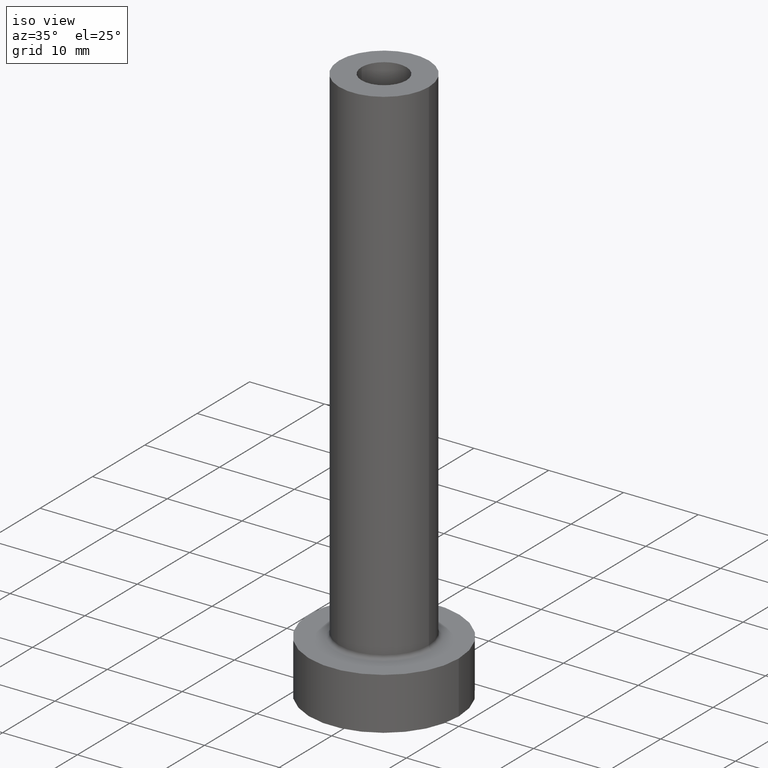
[diagram: clean part render]
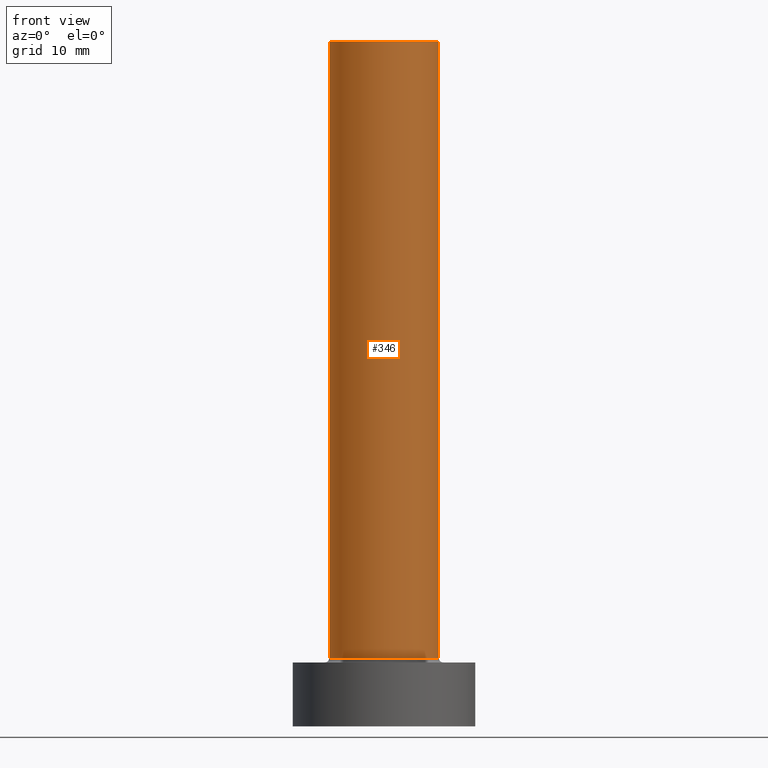
[diagram: tour spotlight — one face highlighted and labeled with its STEP entity id]
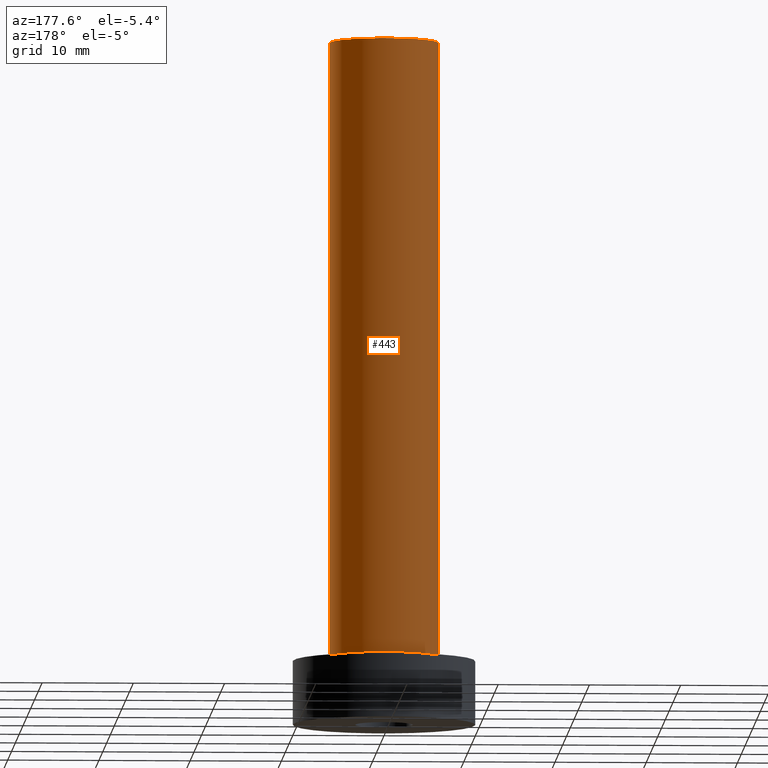
[diagram: tour spotlight — one face highlighted and labeled with its STEP entity id]
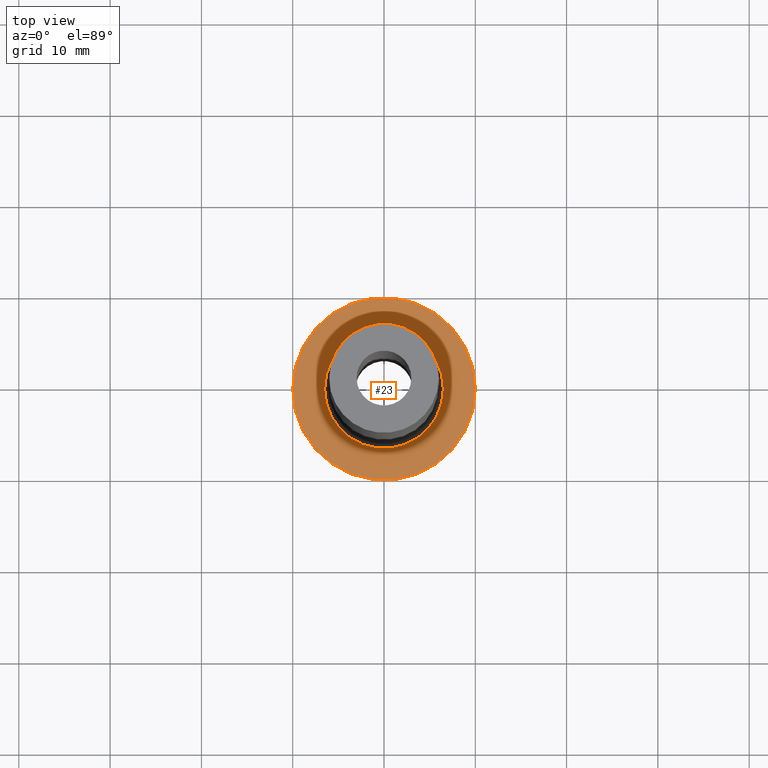
[diagram: tour spotlight — one face highlighted and labeled with its STEP entity id]
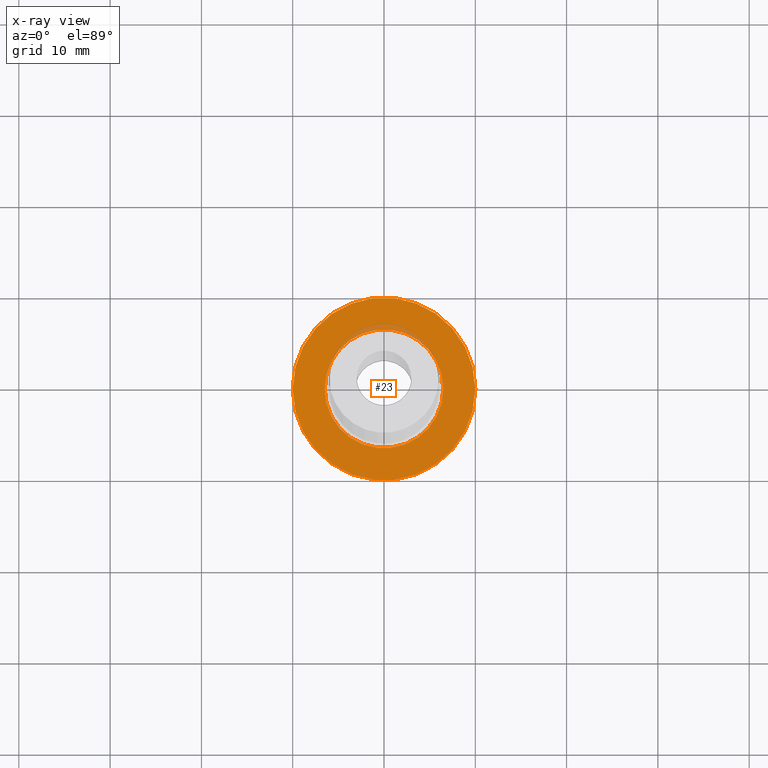
[diagram: x-ray of the same camera — body ghosted, this tour face saturated]
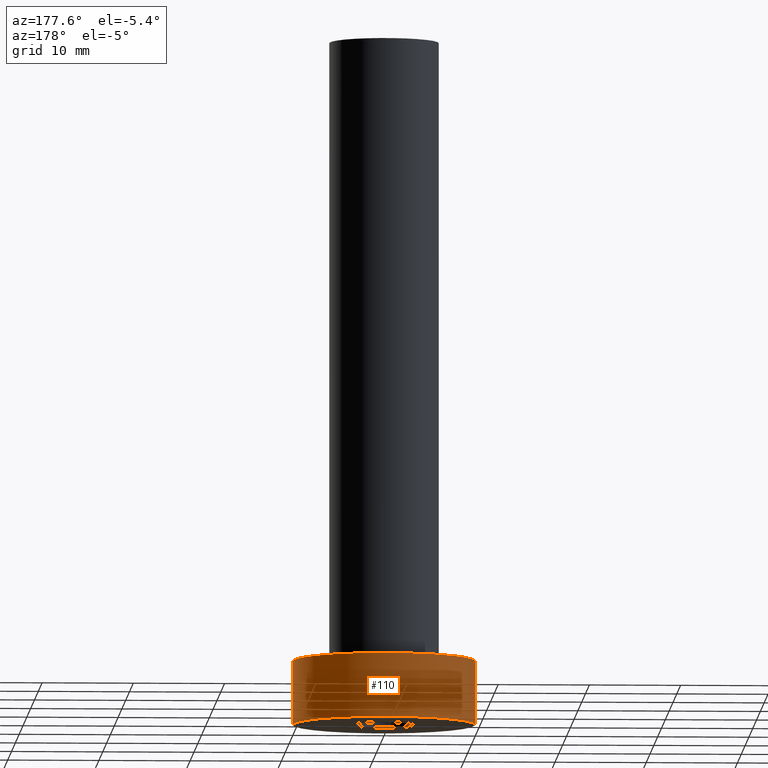
[diagram: tour spotlight — one face highlighted and labeled with its STEP entity id]
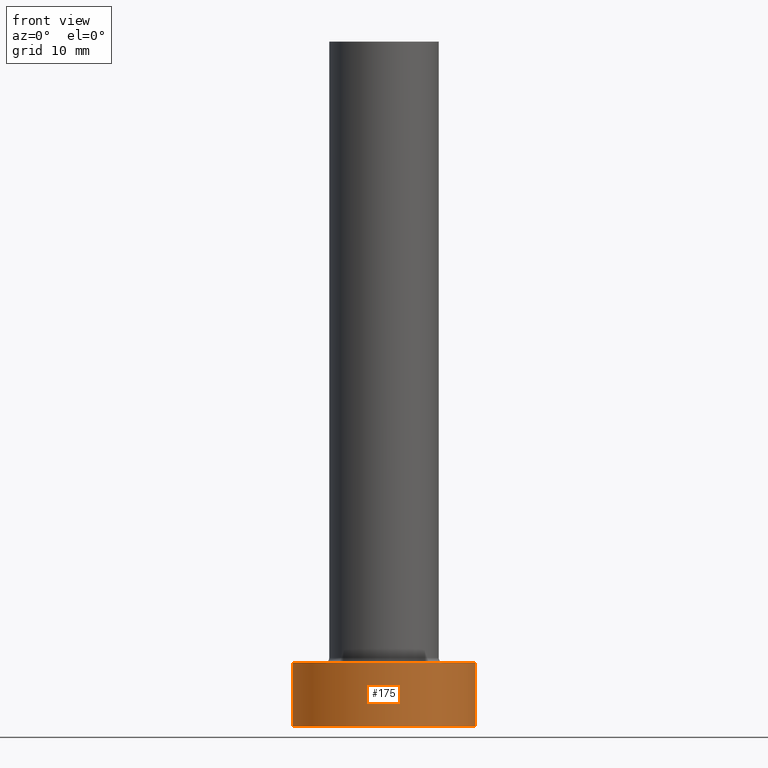
[diagram: tour spotlight — one face highlighted and labeled with its STEP entity id]
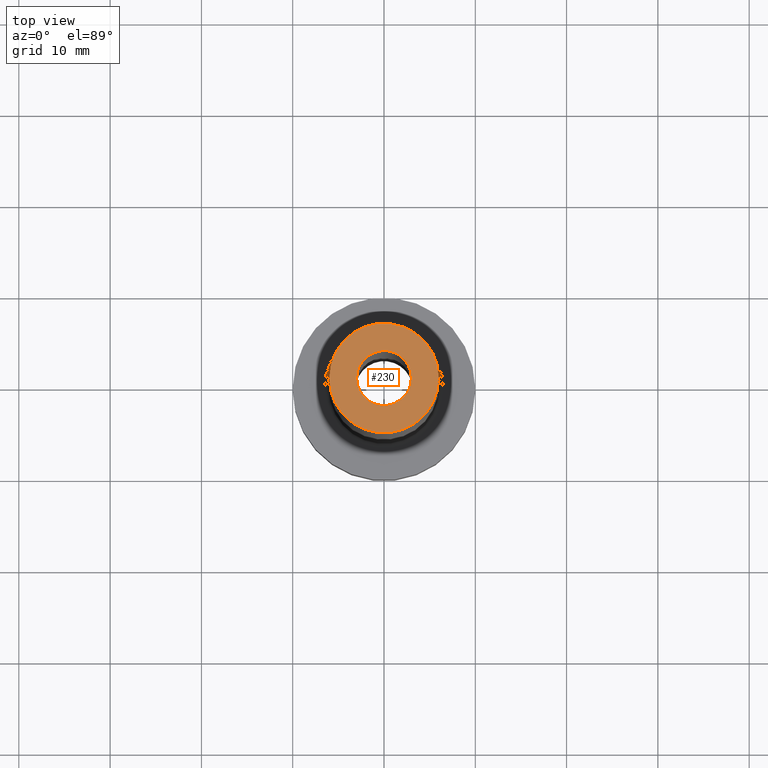
[diagram: tour spotlight — one face highlighted and labeled with its STEP entity id]
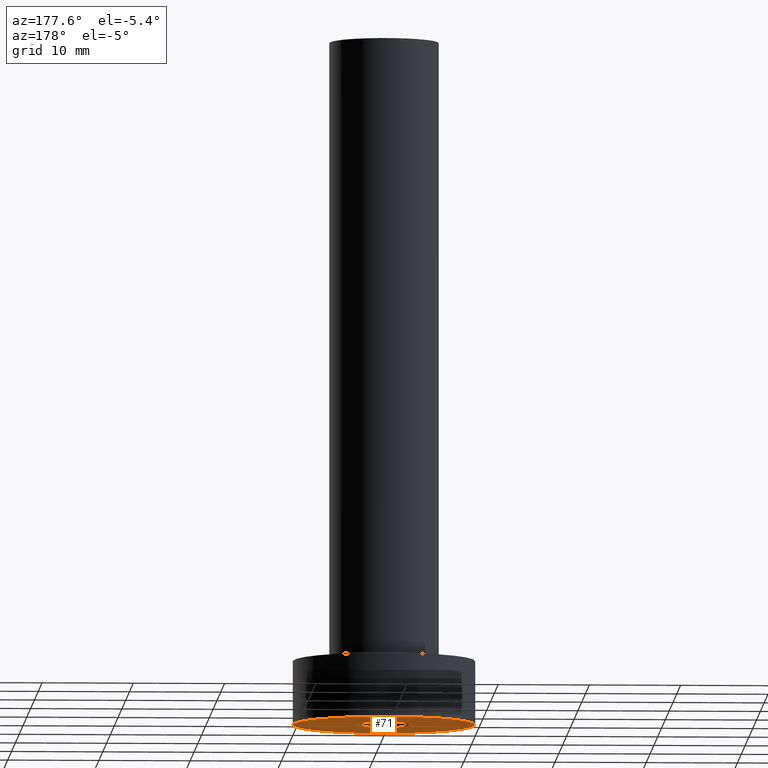
[diagram: tour spotlight — one face highlighted and labeled with its STEP entity id]
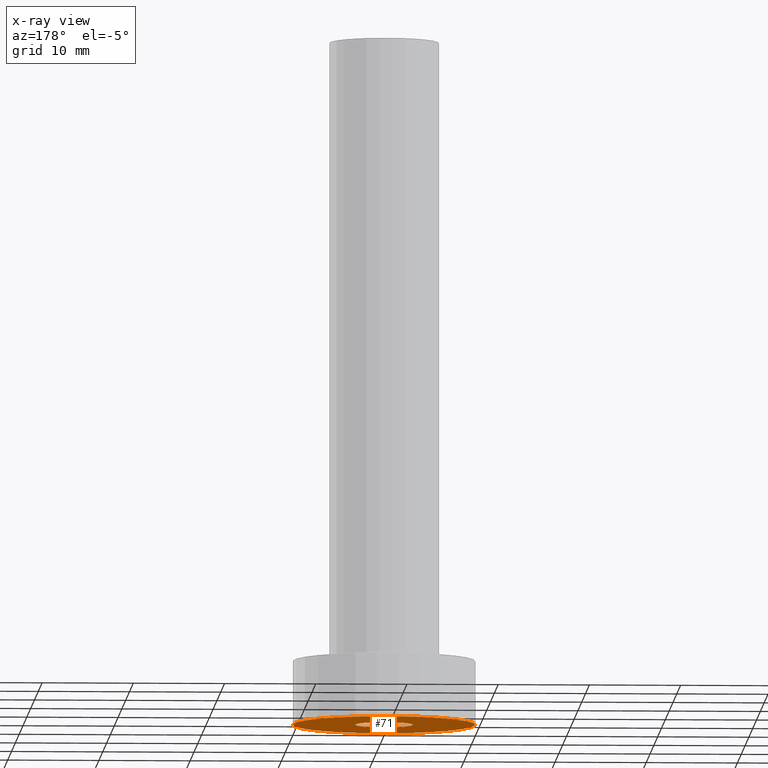
[diagram: x-ray of the same camera — body ghosted, this tour face saturated]
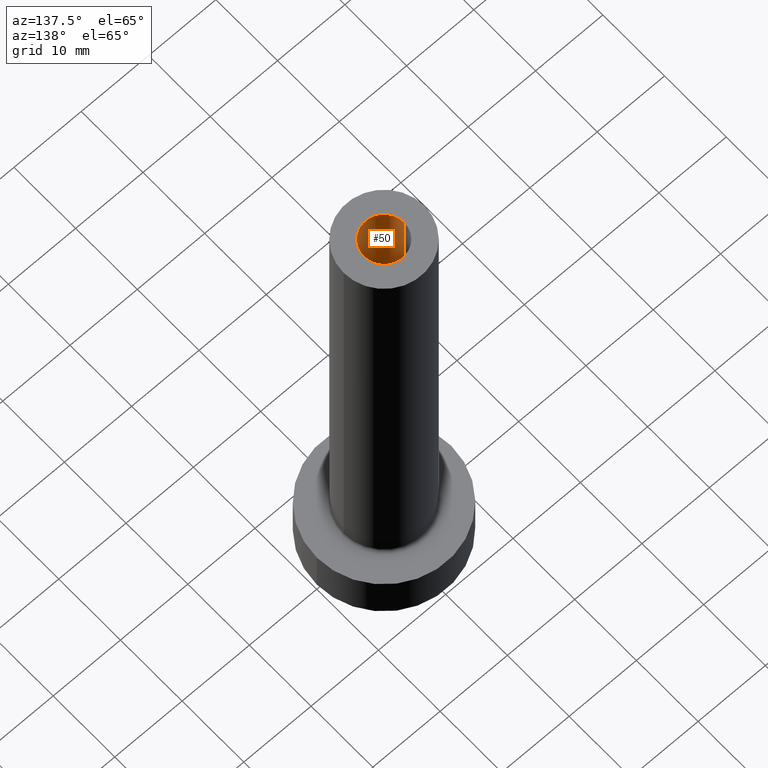
[diagram: tour spotlight — one face highlighted and labeled with its STEP entity id]
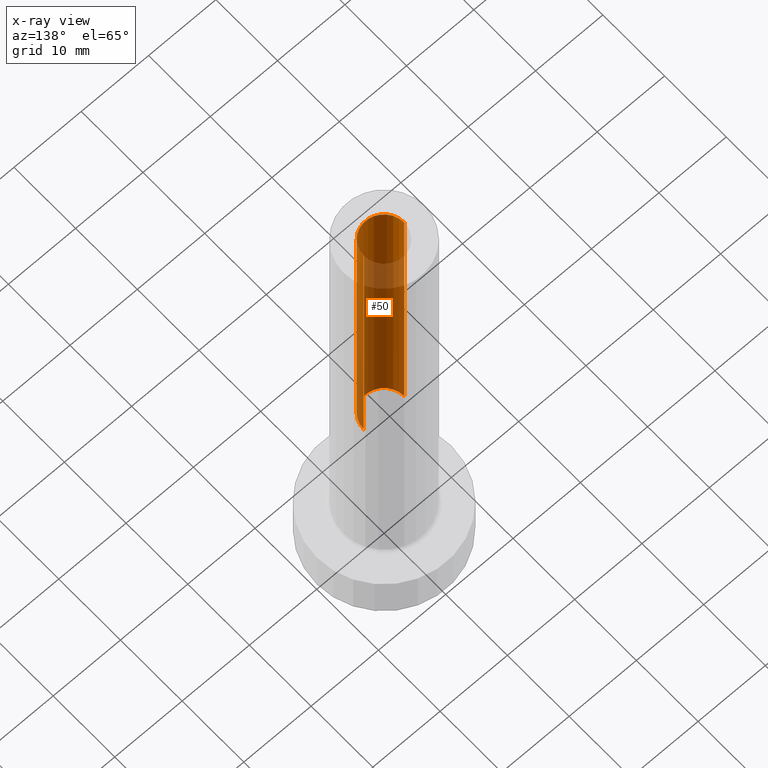
[diagram: x-ray of the same camera — body ghosted, this tour face saturated]
A machine part: a face-by-face anatomy tour. The part has 14 B-rep faces; the first image is the clean iso view, then the 8 largest visible faces are spotlighted one at a time (largest first), each with its STEP entity span.

Face 1 — front view, entity #346. In plain terms, the highlighted cylindrical surface (partial cylindrical patch) has radius 6 mm, axis along (-0, -0, -1).
Definition (entity closure, byte-faithful):
#3 = ORIENTED_EDGE ( 'NONE', *, *, #172, .F. ) ;
#7 = DIRECTION ( 'NONE',  ( 1.000000000000000000, 0.000000000000000000, 0.000000000000000000 ) ) ;
#13 = VERTEX_POINT ( 'NONE', #144 ) ;
#45 = DIRECTION ( 'NONE',  ( -0.000000000000000000, -0.000000000000000000, -1.000000000000000000 ) ) ;
#54 = CARTESIAN_POINT ( 'NONE',  ( 0.000000000000000000, 0.000000000000000000, 75.00000000000001421 ) ) ;
#59 = CARTESIAN_POINT ( 'NONE',  ( 6.000000000000000888, 7.347880794884120722E-16, 75.00000000000001421 ) ) ;
#80 = DIRECTION ( 'NONE',  ( -1.000000000000000000, 0.000000000000000000, 0.000000000000000000 ) ) ;
#81 = CARTESIAN_POINT ( 'NONE',  ( 6.000000000000000888, 7.347880794884120722E-16, 75.00000000000001421 ) ) ;
#82 = VERTEX_POINT ( 'NONE', #432 ) ;
#89 = EDGE_CURVE ( 'NONE', #13, #82, #114, .T. ) ;
#114 = CIRCLE ( 'NONE', #325, 6.000000000000000888 ) ;
#117 = DIRECTION ( 'NONE',  ( -0.000000000000000000, -0.000000000000000000, -1.000000000000000000 ) ) ;
#130 = ORIENTED_EDGE ( 'NONE', *, *, #243, .T. ) ;
#131 = VERTEX_POINT ( 'NONE', #59 ) ;
#140 = EDGE_LOOP ( 'NONE', ( #3, #246, #130, #308 ) ) ;
#144 = CARTESIAN_POINT ( 'NONE',  ( -6.000000000000000888, 0.000000000000000000, 7.500000000000007105 ) ) ;
#157 = EDGE_CURVE ( 'NONE', #381, #131, #249, .T. ) ;
#172 = EDGE_CURVE ( 'NONE', #131, #82, #235, .T. ) ;
#190 = DIRECTION ( 'NONE',  ( 0.000000000000000000, 0.000000000000000000, 1.000000000000000000 ) ) ;
#209 = AXIS2_PLACEMENT_3D ( 'NONE', #54, #398, #338 ) ;
#213 = CARTESIAN_POINT ( 'NONE',  ( -6.000000000000000888, 0.000000000000000000, 75.00000000000001421 ) ) ;
#235 = LINE ( 'NONE', #81, #336 ) ;
#237 = FACE_OUTER_BOUND ( 'NONE', #140, .T. ) ;
#243 = EDGE_CURVE ( 'NONE', #381, #13, #458, .T. ) ;
#246 = ORIENTED_EDGE ( 'NONE', *, *, #157, .F. ) ;
#249 = CIRCLE ( 'NONE', #209, 6.000000000000000888 ) ;
#277 = VECTOR ( 'NONE', #430, 1000.000000000000000 ) ;
#308 = ORIENTED_EDGE ( 'NONE', *, *, #89, .T. ) ;
#325 = AXIS2_PLACEMENT_3D ( 'NONE', #326, #190, #7 ) ;
#326 = CARTESIAN_POINT ( 'NONE',  ( 0.000000000000000000, 0.000000000000000000, 7.500000000000007105 ) ) ;
#336 = VECTOR ( 'NONE', #45, 1000.000000000000000 ) ;
#338 = DIRECTION ( 'NONE',  ( 1.000000000000000000, 0.000000000000000000, 0.000000000000000000 ) ) ;
#341 = CYLINDRICAL_SURFACE ( 'NONE', #459, 6.000000000000000888 ) ;
#346 = ADVANCED_FACE ( 'NONE', ( #237 ), #341, .T. ) ;
#381 = VERTEX_POINT ( 'NONE', #213 ) ;
#398 = DIRECTION ( 'NONE',  ( 0.000000000000000000, 0.000000000000000000, 1.000000000000000000 ) ) ;
#406 = CARTESIAN_POINT ( 'NONE',  ( -6.000000000000000888, 0.000000000000000000, 75.00000000000001421 ) ) ;
#430 = DIRECTION ( 'NONE',  ( -0.000000000000000000, -0.000000000000000000, -1.000000000000000000 ) ) ;
#431 = CARTESIAN_POINT ( 'NONE',  ( 0.000000000000000000, 0.000000000000000000, 75.00000000000001421 ) ) ;
#432 = CARTESIAN_POINT ( 'NONE',  ( 6.000000000000000888, 7.347880794884120722E-16, 7.500000000000007105 ) ) ;
#458 = LINE ( 'NONE', #406, #277 ) ;
#459 = AXIS2_PLACEMENT_3D ( 'NONE', #431, #117, #80 ) ;

Face 2 — auxiliary view, entity #443. In plain terms, the highlighted cylindrical surface (partial cylindrical patch) has radius 6 mm, axis along (-0, -0, -1).
Definition (entity closure, byte-faithful):
#13 = VERTEX_POINT ( 'NONE', #144 ) ;
#22 = DIRECTION ( 'NONE',  ( -1.000000000000000000, 0.000000000000000000, 0.000000000000000000 ) ) ;
#45 = DIRECTION ( 'NONE',  ( -0.000000000000000000, -0.000000000000000000, -1.000000000000000000 ) ) ;
#53 = DIRECTION ( 'NONE',  ( 0.000000000000000000, 0.000000000000000000, 1.000000000000000000 ) ) ;
#59 = CARTESIAN_POINT ( 'NONE',  ( 6.000000000000000888, 7.347880794884120722E-16, 75.00000000000001421 ) ) ;
#79 = ORIENTED_EDGE ( 'NONE', *, *, #172, .T. ) ;
#81 = CARTESIAN_POINT ( 'NONE',  ( 6.000000000000000888, 7.347880794884120722E-16, 75.00000000000001421 ) ) ;
#82 = VERTEX_POINT ( 'NONE', #432 ) ;
#83 = AXIS2_PLACEMENT_3D ( 'NONE', #229, #192, #252 ) ;
#91 = DIRECTION ( 'NONE',  ( -0.000000000000000000, -0.000000000000000000, -1.000000000000000000 ) ) ;
#92 = CIRCLE ( 'NONE', #97, 6.000000000000000888 ) ;
#97 = AXIS2_PLACEMENT_3D ( 'NONE', #231, #53, #337 ) ;
#131 = VERTEX_POINT ( 'NONE', #59 ) ;
#144 = CARTESIAN_POINT ( 'NONE',  ( -6.000000000000000888, 0.000000000000000000, 7.500000000000007105 ) ) ;
#172 = EDGE_CURVE ( 'NONE', #131, #82, #235, .T. ) ;
#192 = DIRECTION ( 'NONE',  ( 0.000000000000000000, 0.000000000000000000, 1.000000000000000000 ) ) ;
#202 = CARTESIAN_POINT ( 'NONE',  ( 0.000000000000000000, 0.000000000000000000, 75.00000000000001421 ) ) ;
#213 = CARTESIAN_POINT ( 'NONE',  ( -6.000000000000000888, 0.000000000000000000, 75.00000000000001421 ) ) ;
#229 = CARTESIAN_POINT ( 'NONE',  ( 0.000000000000000000, 0.000000000000000000, 75.00000000000001421 ) ) ;
#231 = CARTESIAN_POINT ( 'NONE',  ( 0.000000000000000000, 0.000000000000000000, 7.500000000000007105 ) ) ;
#235 = LINE ( 'NONE', #81, #336 ) ;
#243 = EDGE_CURVE ( 'NONE', #381, #13, #458, .T. ) ;
#245 = FACE_OUTER_BOUND ( 'NONE', #305, .T. ) ;
#248 = EDGE_CURVE ( 'NONE', #131, #381, #409, .T. ) ;
#252 = DIRECTION ( 'NONE',  ( 1.000000000000000000, 0.000000000000000000, 0.000000000000000000 ) ) ;
#277 = VECTOR ( 'NONE', #430, 1000.000000000000000 ) ;
#282 = ORIENTED_EDGE ( 'NONE', *, *, #426, .T. ) ;
#305 = EDGE_LOOP ( 'NONE', ( #411, #79, #282, #423 ) ) ;
#314 = AXIS2_PLACEMENT_3D ( 'NONE', #202, #91, #22 ) ;
#336 = VECTOR ( 'NONE', #45, 1000.000000000000000 ) ;
#337 = DIRECTION ( 'NONE',  ( 1.000000000000000000, 0.000000000000000000, 0.000000000000000000 ) ) ;
#381 = VERTEX_POINT ( 'NONE', #213 ) ;
#406 = CARTESIAN_POINT ( 'NONE',  ( -6.000000000000000888, 0.000000000000000000, 75.00000000000001421 ) ) ;
#409 = CIRCLE ( 'NONE', #83, 6.000000000000000888 ) ;
#411 = ORIENTED_EDGE ( 'NONE', *, *, #248, .F. ) ;
#423 = ORIENTED_EDGE ( 'NONE', *, *, #243, .F. ) ;
#424 = CYLINDRICAL_SURFACE ( 'NONE', #314, 6.000000000000000888 ) ;
#426 = EDGE_CURVE ( 'NONE', #82, #13, #92, .T. ) ;
#430 = DIRECTION ( 'NONE',  ( -0.000000000000000000, -0.000000000000000000, -1.000000000000000000 ) ) ;
#432 = CARTESIAN_POINT ( 'NONE',  ( 6.000000000000000888, 7.347880794884120722E-16, 7.500000000000007105 ) ) ;
#443 = ADVANCED_FACE ( 'NONE', ( #245 ), #424, .T. ) ;
#458 = LINE ( 'NONE', #406, #277 ) ;

Face 3 — top view, entity #23. An x-ray twin of the same camera follows (body ghosted, this face saturated) — the face is partly hidden behind the body. In plain terms, the highlighted planar face has unit normal (0, 0, 1).
Definition (entity closure, byte-faithful):
#10 = VERTEX_POINT ( 'NONE', #452 ) ;
#15 = DIRECTION ( 'NONE',  ( 1.000000000000000000, 0.000000000000000000, 0.000000000000000000 ) ) ;
#23 = ADVANCED_FACE ( 'NONE', ( #421, #180 ), #105, .T. ) ;
#36 = ORIENTED_EDGE ( 'NONE', *, *, #76, .T. ) ;
#37 = CIRCLE ( 'NONE', #93, 6.500000000000000888 ) ;
#40 = VERTEX_POINT ( 'NONE', #377 ) ;
#48 = ORIENTED_EDGE ( 'NONE', *, *, #106, .T. ) ;
#49 = VERTEX_POINT ( 'NONE', #62 ) ;
#62 = CARTESIAN_POINT ( 'NONE',  ( -10.00000000000000000, 0.000000000000000000, 7.000000000000000000 ) ) ;
#73 = EDGE_LOOP ( 'NONE', ( #48, #303 ) ) ;
#76 = EDGE_CURVE ( 'NONE', #49, #40, #211, .T. ) ;
#88 = CARTESIAN_POINT ( 'NONE',  ( 6.500000000000000888, 0.000000000000000000, 7.000000000000002665 ) ) ;
#93 = AXIS2_PLACEMENT_3D ( 'NONE', #442, #374, #15 ) ;
#105 = PLANE ( 'NONE',  #271 ) ;
#106 = EDGE_CURVE ( 'NONE', #270, #10, #387, .T. ) ;
#135 = DIRECTION ( 'NONE',  ( 1.000000000000000000, 0.000000000000000000, -0.000000000000000000 ) ) ;
#167 = DIRECTION ( 'NONE',  ( 1.000000000000000000, 0.000000000000000000, 0.000000000000000000 ) ) ;
#180 = FACE_OUTER_BOUND ( 'NONE', #401, .T. ) ;
#198 = CARTESIAN_POINT ( 'NONE',  ( 0.000000000000000000, 0.000000000000000000, 7.000000000000000000 ) ) ;
#199 = AXIS2_PLACEMENT_3D ( 'NONE', #366, #328, #250 ) ;
#211 = CIRCLE ( 'NONE', #266, 10.00000000000000000 ) ;
#226 = AXIS2_PLACEMENT_3D ( 'NONE', #198, #333, #167 ) ;
#232 = DIRECTION ( 'NONE',  ( 1.000000000000000000, 0.000000000000000000, 0.000000000000000000 ) ) ;
#244 = CARTESIAN_POINT ( 'NONE',  ( 0.000000000000000000, 0.000000000000000000, 7.000000000000000000 ) ) ;
#250 = DIRECTION ( 'NONE',  ( 1.000000000000000000, 0.000000000000000000, 0.000000000000000000 ) ) ;
#266 = AXIS2_PLACEMENT_3D ( 'NONE', #437, #340, #232 ) ;
#270 = VERTEX_POINT ( 'NONE', #88 ) ;
#271 = AXIS2_PLACEMENT_3D ( 'NONE', #244, #383, #135 ) ;
#275 = EDGE_CURVE ( 'NONE', #40, #49, #344, .T. ) ;
#303 = ORIENTED_EDGE ( 'NONE', *, *, #456, .T. ) ;
#328 = DIRECTION ( 'NONE',  ( 0.000000000000000000, 0.000000000000000000, 1.000000000000000000 ) ) ;
#333 = DIRECTION ( 'NONE',  ( -0.000000000000000000, -0.000000000000000000, -1.000000000000000000 ) ) ;
#340 = DIRECTION ( 'NONE',  ( 0.000000000000000000, 0.000000000000000000, 1.000000000000000000 ) ) ;
#344 = CIRCLE ( 'NONE', #199, 10.00000000000000000 ) ;
#355 = ORIENTED_EDGE ( 'NONE', *, *, #275, .T. ) ;
#366 = CARTESIAN_POINT ( 'NONE',  ( 0.000000000000000000, 0.000000000000000000, 7.000000000000000000 ) ) ;
#374 = DIRECTION ( 'NONE',  ( -0.000000000000000000, -0.000000000000000000, -1.000000000000000000 ) ) ;
#377 = CARTESIAN_POINT ( 'NONE',  ( 10.00000000000000000, 1.224646799147353256E-15, 7.000000000000000000 ) ) ;
#383 = DIRECTION ( 'NONE',  ( 0.000000000000000000, 0.000000000000000000, 1.000000000000000000 ) ) ;
#387 = CIRCLE ( 'NONE', #226, 6.500000000000000888 ) ;
#401 = EDGE_LOOP ( 'NONE', ( #36, #355 ) ) ;
#421 = FACE_BOUND ( 'NONE', #73, .T. ) ;
#437 = CARTESIAN_POINT ( 'NONE',  ( 0.000000000000000000, 0.000000000000000000, 7.000000000000000000 ) ) ;
#442 = CARTESIAN_POINT ( 'NONE',  ( 0.000000000000000000, 0.000000000000000000, 7.000000000000000000 ) ) ;
#452 = CARTESIAN_POINT ( 'NONE',  ( -6.500000000000000888, 7.960204194457796463E-16, 7.000000000000002665 ) ) ;
#456 = EDGE_CURVE ( 'NONE', #10, #270, #37, .T. ) ;

Face 4 — auxiliary view, entity #110. In plain terms, the highlighted cylindrical surface (partial cylindrical patch) has radius 10 mm, axis along (-0, -0, -1).
Definition (entity closure, byte-faithful):
#19 = CARTESIAN_POINT ( 'NONE',  ( 0.000000000000000000, 0.000000000000000000, 7.000000000000000000 ) ) ;
#28 = ORIENTED_EDGE ( 'NONE', *, *, #197, .T. ) ;
#29 = CARTESIAN_POINT ( 'NONE',  ( 0.000000000000000000, 0.000000000000000000, 0.000000000000000000 ) ) ;
#35 = EDGE_CURVE ( 'NONE', #40, #331, #147, .T. ) ;
#40 = VERTEX_POINT ( 'NONE', #377 ) ;
#49 = VERTEX_POINT ( 'NONE', #62 ) ;
#62 = CARTESIAN_POINT ( 'NONE',  ( -10.00000000000000000, 0.000000000000000000, 7.000000000000000000 ) ) ;
#87 = CARTESIAN_POINT ( 'NONE',  ( -10.00000000000000000, 0.000000000000000000, 0.000000000000000000 ) ) ;
#110 = ADVANCED_FACE ( 'NONE', ( #368 ), #439, .T. ) ;
#128 = DIRECTION ( 'NONE',  ( -1.000000000000000000, 0.000000000000000000, 0.000000000000000000 ) ) ;
#142 = VECTOR ( 'NONE', #274, 1000.000000000000000 ) ;
#146 = EDGE_LOOP ( 'NONE', ( #320, #164, #28, #332 ) ) ;
#147 = LINE ( 'NONE', #267, #410 ) ;
#153 = CIRCLE ( 'NONE', #223, 10.00000000000000000 ) ;
#164 = ORIENTED_EDGE ( 'NONE', *, *, #35, .T. ) ;
#173 = LINE ( 'NONE', #307, #142 ) ;
#176 = AXIS2_PLACEMENT_3D ( 'NONE', #19, #259, #128 ) ;
#197 = EDGE_CURVE ( 'NONE', #331, #316, #153, .T. ) ;
#199 = AXIS2_PLACEMENT_3D ( 'NONE', #366, #328, #250 ) ;
#223 = AXIS2_PLACEMENT_3D ( 'NONE', #29, #388, #317 ) ;
#250 = DIRECTION ( 'NONE',  ( 1.000000000000000000, 0.000000000000000000, 0.000000000000000000 ) ) ;
#259 = DIRECTION ( 'NONE',  ( -0.000000000000000000, -0.000000000000000000, -1.000000000000000000 ) ) ;
#267 = CARTESIAN_POINT ( 'NONE',  ( 10.00000000000000000, 1.224646799147353256E-15, 7.000000000000000000 ) ) ;
#274 = DIRECTION ( 'NONE',  ( -0.000000000000000000, -0.000000000000000000, -1.000000000000000000 ) ) ;
#275 = EDGE_CURVE ( 'NONE', #40, #49, #344, .T. ) ;
#307 = CARTESIAN_POINT ( 'NONE',  ( -10.00000000000000000, 0.000000000000000000, 7.000000000000000000 ) ) ;
#316 = VERTEX_POINT ( 'NONE', #87 ) ;
#317 = DIRECTION ( 'NONE',  ( 1.000000000000000000, 0.000000000000000000, 0.000000000000000000 ) ) ;
#320 = ORIENTED_EDGE ( 'NONE', *, *, #275, .F. ) ;
#328 = DIRECTION ( 'NONE',  ( 0.000000000000000000, 0.000000000000000000, 1.000000000000000000 ) ) ;
#331 = VERTEX_POINT ( 'NONE', #373 ) ;
#332 = ORIENTED_EDGE ( 'NONE', *, *, #438, .F. ) ;
#344 = CIRCLE ( 'NONE', #199, 10.00000000000000000 ) ;
#366 = CARTESIAN_POINT ( 'NONE',  ( 0.000000000000000000, 0.000000000000000000, 7.000000000000000000 ) ) ;
#368 = FACE_OUTER_BOUND ( 'NONE', #146, .T. ) ;
#373 = CARTESIAN_POINT ( 'NONE',  ( 10.00000000000000000, 1.224646799147353256E-15, 0.000000000000000000 ) ) ;
#377 = CARTESIAN_POINT ( 'NONE',  ( 10.00000000000000000, 1.224646799147353256E-15, 7.000000000000000000 ) ) ;
#388 = DIRECTION ( 'NONE',  ( 0.000000000000000000, 0.000000000000000000, 1.000000000000000000 ) ) ;
#410 = VECTOR ( 'NONE', #413, 1000.000000000000000 ) ;
#413 = DIRECTION ( 'NONE',  ( -0.000000000000000000, -0.000000000000000000, -1.000000000000000000 ) ) ;
#438 = EDGE_CURVE ( 'NONE', #49, #316, #173, .T. ) ;
#439 = CYLINDRICAL_SURFACE ( 'NONE', #176, 10.00000000000000000 ) ;

Face 5 — front view, entity #175. In plain terms, the highlighted cylindrical surface (partial cylindrical patch) has radius 10 mm, axis along (-0, -0, -1).
Definition (entity closure, byte-faithful):
#35 = EDGE_CURVE ( 'NONE', #40, #331, #147, .T. ) ;
#40 = VERTEX_POINT ( 'NONE', #377 ) ;
#49 = VERTEX_POINT ( 'NONE', #62 ) ;
#51 = CARTESIAN_POINT ( 'NONE',  ( 0.000000000000000000, 0.000000000000000000, 0.000000000000000000 ) ) ;
#62 = CARTESIAN_POINT ( 'NONE',  ( -10.00000000000000000, 0.000000000000000000, 7.000000000000000000 ) ) ;
#76 = EDGE_CURVE ( 'NONE', #49, #40, #211, .T. ) ;
#87 = CARTESIAN_POINT ( 'NONE',  ( -10.00000000000000000, 0.000000000000000000, 0.000000000000000000 ) ) ;
#102 = EDGE_CURVE ( 'NONE', #316, #331, #362, .T. ) ;
#112 = CARTESIAN_POINT ( 'NONE',  ( 0.000000000000000000, 0.000000000000000000, 7.000000000000000000 ) ) ;
#115 = ORIENTED_EDGE ( 'NONE', *, *, #35, .F. ) ;
#122 = CYLINDRICAL_SURFACE ( 'NONE', #141, 10.00000000000000000 ) ;
#134 = AXIS2_PLACEMENT_3D ( 'NONE', #51, #160, #263 ) ;
#141 = AXIS2_PLACEMENT_3D ( 'NONE', #112, #460, #391 ) ;
#142 = VECTOR ( 'NONE', #274, 1000.000000000000000 ) ;
#147 = LINE ( 'NONE', #267, #410 ) ;
#160 = DIRECTION ( 'NONE',  ( 0.000000000000000000, 0.000000000000000000, 1.000000000000000000 ) ) ;
#173 = LINE ( 'NONE', #307, #142 ) ;
#175 = ADVANCED_FACE ( 'NONE', ( #371 ), #122, .T. ) ;
#200 = ORIENTED_EDGE ( 'NONE', *, *, #76, .F. ) ;
#211 = CIRCLE ( 'NONE', #266, 10.00000000000000000 ) ;
#232 = DIRECTION ( 'NONE',  ( 1.000000000000000000, 0.000000000000000000, 0.000000000000000000 ) ) ;
#263 = DIRECTION ( 'NONE',  ( 1.000000000000000000, 0.000000000000000000, 0.000000000000000000 ) ) ;
#266 = AXIS2_PLACEMENT_3D ( 'NONE', #437, #340, #232 ) ;
#267 = CARTESIAN_POINT ( 'NONE',  ( 10.00000000000000000, 1.224646799147353256E-15, 7.000000000000000000 ) ) ;
#274 = DIRECTION ( 'NONE',  ( -0.000000000000000000, -0.000000000000000000, -1.000000000000000000 ) ) ;
#293 = EDGE_LOOP ( 'NONE', ( #115, #200, #397, #327 ) ) ;
#307 = CARTESIAN_POINT ( 'NONE',  ( -10.00000000000000000, 0.000000000000000000, 7.000000000000000000 ) ) ;
#316 = VERTEX_POINT ( 'NONE', #87 ) ;
#327 = ORIENTED_EDGE ( 'NONE', *, *, #102, .T. ) ;
#331 = VERTEX_POINT ( 'NONE', #373 ) ;
#340 = DIRECTION ( 'NONE',  ( 0.000000000000000000, 0.000000000000000000, 1.000000000000000000 ) ) ;
#362 = CIRCLE ( 'NONE', #134, 10.00000000000000000 ) ;
#371 = FACE_OUTER_BOUND ( 'NONE', #293, .T. ) ;
#373 = CARTESIAN_POINT ( 'NONE',  ( 10.00000000000000000, 1.224646799147353256E-15, 0.000000000000000000 ) ) ;
#377 = CARTESIAN_POINT ( 'NONE',  ( 10.00000000000000000, 1.224646799147353256E-15, 7.000000000000000000 ) ) ;
#391 = DIRECTION ( 'NONE',  ( -1.000000000000000000, 0.000000000000000000, 0.000000000000000000 ) ) ;
#397 = ORIENTED_EDGE ( 'NONE', *, *, #438, .T. ) ;
#410 = VECTOR ( 'NONE', #413, 1000.000000000000000 ) ;
#413 = DIRECTION ( 'NONE',  ( -0.000000000000000000, -0.000000000000000000, -1.000000000000000000 ) ) ;
#437 = CARTESIAN_POINT ( 'NONE',  ( 0.000000000000000000, 0.000000000000000000, 7.000000000000000000 ) ) ;
#438 = EDGE_CURVE ( 'NONE', #49, #316, #173, .T. ) ;
#460 = DIRECTION ( 'NONE',  ( -0.000000000000000000, -0.000000000000000000, -1.000000000000000000 ) ) ;

Face 6 — top view, entity #230. In plain terms, the highlighted planar face has unit normal (0, 0, 1).
Definition (entity closure, byte-faithful):
#1 = FACE_BOUND ( 'NONE', #125, .T. ) ;
#9 = CARTESIAN_POINT ( 'NONE',  ( -3.000000000000000444, 0.000000000000000000, 75.00000000000001421 ) ) ;
#54 = CARTESIAN_POINT ( 'NONE',  ( 0.000000000000000000, 0.000000000000000000, 75.00000000000001421 ) ) ;
#59 = CARTESIAN_POINT ( 'NONE',  ( 6.000000000000000888, 7.347880794884120722E-16, 75.00000000000001421 ) ) ;
#64 = CARTESIAN_POINT ( 'NONE',  ( 0.000000000000000000, 0.000000000000000000, 75.00000000000001421 ) ) ;
#68 = EDGE_CURVE ( 'NONE', #358, #286, #372, .T. ) ;
#74 = DIRECTION ( 'NONE',  ( 1.000000000000000000, 0.000000000000000000, 0.000000000000000000 ) ) ;
#78 = EDGE_CURVE ( 'NONE', #286, #358, #380, .T. ) ;
#83 = AXIS2_PLACEMENT_3D ( 'NONE', #229, #192, #252 ) ;
#109 = AXIS2_PLACEMENT_3D ( 'NONE', #287, #224, #295 ) ;
#125 = EDGE_LOOP ( 'NONE', ( #339, #334 ) ) ;
#131 = VERTEX_POINT ( 'NONE', #59 ) ;
#143 = AXIS2_PLACEMENT_3D ( 'NONE', #155, #311, #74 ) ;
#149 = DIRECTION ( 'NONE',  ( 1.000000000000000000, 0.000000000000000000, -0.000000000000000000 ) ) ;
#155 = CARTESIAN_POINT ( 'NONE',  ( 0.000000000000000000, 0.000000000000000000, 75.00000000000001421 ) ) ;
#157 = EDGE_CURVE ( 'NONE', #381, #131, #249, .T. ) ;
#191 = ORIENTED_EDGE ( 'NONE', *, *, #157, .T. ) ;
#192 = DIRECTION ( 'NONE',  ( 0.000000000000000000, 0.000000000000000000, 1.000000000000000000 ) ) ;
#209 = AXIS2_PLACEMENT_3D ( 'NONE', #54, #398, #338 ) ;
#213 = CARTESIAN_POINT ( 'NONE',  ( -6.000000000000000888, 0.000000000000000000, 75.00000000000001421 ) ) ;
#224 = DIRECTION ( 'NONE',  ( 0.000000000000000000, 0.000000000000000000, 1.000000000000000000 ) ) ;
#229 = CARTESIAN_POINT ( 'NONE',  ( 0.000000000000000000, 0.000000000000000000, 75.00000000000001421 ) ) ;
#230 = ADVANCED_FACE ( 'NONE', ( #1, #414 ), #378, .T. ) ;
#236 = AXIS2_PLACEMENT_3D ( 'NONE', #64, #301, #149 ) ;
#247 = EDGE_LOOP ( 'NONE', ( #191, #347 ) ) ;
#248 = EDGE_CURVE ( 'NONE', #131, #381, #409, .T. ) ;
#249 = CIRCLE ( 'NONE', #209, 6.000000000000000888 ) ;
#252 = DIRECTION ( 'NONE',  ( 1.000000000000000000, 0.000000000000000000, 0.000000000000000000 ) ) ;
#286 = VERTEX_POINT ( 'NONE', #403 ) ;
#287 = CARTESIAN_POINT ( 'NONE',  ( 0.000000000000000000, 0.000000000000000000, 75.00000000000001421 ) ) ;
#295 = DIRECTION ( 'NONE',  ( 1.000000000000000000, 0.000000000000000000, 0.000000000000000000 ) ) ;
#301 = DIRECTION ( 'NONE',  ( 0.000000000000000000, 0.000000000000000000, 1.000000000000000000 ) ) ;
#311 = DIRECTION ( 'NONE',  ( 0.000000000000000000, 0.000000000000000000, 1.000000000000000000 ) ) ;
#334 = ORIENTED_EDGE ( 'NONE', *, *, #78, .F. ) ;
#338 = DIRECTION ( 'NONE',  ( 1.000000000000000000, 0.000000000000000000, 0.000000000000000000 ) ) ;
#339 = ORIENTED_EDGE ( 'NONE', *, *, #68, .F. ) ;
#347 = ORIENTED_EDGE ( 'NONE', *, *, #248, .T. ) ;
#358 = VERTEX_POINT ( 'NONE', #9 ) ;
#372 = CIRCLE ( 'NONE', #143, 3.000000000000000444 ) ;
#378 = PLANE ( 'NONE',  #236 ) ;
#380 = CIRCLE ( 'NONE', #109, 3.000000000000000444 ) ;
#381 = VERTEX_POINT ( 'NONE', #213 ) ;
#398 = DIRECTION ( 'NONE',  ( 0.000000000000000000, 0.000000000000000000, 1.000000000000000000 ) ) ;
#403 = CARTESIAN_POINT ( 'NONE',  ( 3.000000000000000444, 3.673940397442059868E-16, 75.00000000000001421 ) ) ;
#409 = CIRCLE ( 'NONE', #83, 6.000000000000000888 ) ;
#414 = FACE_OUTER_BOUND ( 'NONE', #247, .T. ) ;

Face 7 — auxiliary view, entity #71. An x-ray twin of the same camera follows (body ghosted, this face saturated) — the face is partly hidden behind the body. In plain terms, the highlighted planar face has unit normal (0, 0, 1).
Definition (entity closure, byte-faithful):
#14 = CARTESIAN_POINT ( 'NONE',  ( 0.000000000000000000, 0.000000000000000000, 0.000000000000000000 ) ) ;
#18 = CIRCLE ( 'NONE', #361, 3.150000000000000355 ) ;
#25 = CIRCLE ( 'NONE', #429, 3.150000000000000355 ) ;
#29 = CARTESIAN_POINT ( 'NONE',  ( 0.000000000000000000, 0.000000000000000000, 0.000000000000000000 ) ) ;
#51 = CARTESIAN_POINT ( 'NONE',  ( 0.000000000000000000, 0.000000000000000000, 0.000000000000000000 ) ) ;
#52 = VERTEX_POINT ( 'NONE', #116 ) ;
#71 = ADVANCED_FACE ( 'NONE', ( #215, #356 ), #222, .F. ) ;
#72 = AXIS2_PLACEMENT_3D ( 'NONE', #14, #330, #193 ) ;
#87 = CARTESIAN_POINT ( 'NONE',  ( -10.00000000000000000, 0.000000000000000000, 0.000000000000000000 ) ) ;
#98 = DIRECTION ( 'NONE',  ( -0.000000000000000000, -0.000000000000000000, -1.000000000000000000 ) ) ;
#101 = ORIENTED_EDGE ( 'NONE', *, *, #203, .F. ) ;
#102 = EDGE_CURVE ( 'NONE', #316, #331, #362, .T. ) ;
#116 = CARTESIAN_POINT ( 'NONE',  ( 3.150000000000000355, 3.857637417314163182E-16, 0.000000000000000000 ) ) ;
#127 = CARTESIAN_POINT ( 'NONE',  ( 0.000000000000000000, 0.000000000000000000, 0.000000000000000000 ) ) ;
#134 = AXIS2_PLACEMENT_3D ( 'NONE', #51, #160, #263 ) ;
#150 = EDGE_CURVE ( 'NONE', #52, #178, #18, .T. ) ;
#153 = CIRCLE ( 'NONE', #223, 10.00000000000000000 ) ;
#158 = DIRECTION ( 'NONE',  ( 1.000000000000000000, 0.000000000000000000, 0.000000000000000000 ) ) ;
#160 = DIRECTION ( 'NONE',  ( 0.000000000000000000, 0.000000000000000000, 1.000000000000000000 ) ) ;
#178 = VERTEX_POINT ( 'NONE', #345 ) ;
#179 = ORIENTED_EDGE ( 'NONE', *, *, #197, .F. ) ;
#186 = CARTESIAN_POINT ( 'NONE',  ( 0.000000000000000000, 0.000000000000000000, 0.000000000000000000 ) ) ;
#193 = DIRECTION ( 'NONE',  ( 1.000000000000000000, 0.000000000000000000, -0.000000000000000000 ) ) ;
#194 = ORIENTED_EDGE ( 'NONE', *, *, #102, .F. ) ;
#197 = EDGE_CURVE ( 'NONE', #331, #316, #153, .T. ) ;
#203 = EDGE_CURVE ( 'NONE', #178, #52, #25, .T. ) ;
#215 = FACE_BOUND ( 'NONE', #349, .T. ) ;
#222 = PLANE ( 'NONE',  #72 ) ;
#223 = AXIS2_PLACEMENT_3D ( 'NONE', #29, #388, #317 ) ;
#251 = ORIENTED_EDGE ( 'NONE', *, *, #150, .F. ) ;
#263 = DIRECTION ( 'NONE',  ( 1.000000000000000000, 0.000000000000000000, 0.000000000000000000 ) ) ;
#316 = VERTEX_POINT ( 'NONE', #87 ) ;
#317 = DIRECTION ( 'NONE',  ( 1.000000000000000000, 0.000000000000000000, 0.000000000000000000 ) ) ;
#319 = DIRECTION ( 'NONE',  ( 1.000000000000000000, 0.000000000000000000, 0.000000000000000000 ) ) ;
#330 = DIRECTION ( 'NONE',  ( 0.000000000000000000, 0.000000000000000000, 1.000000000000000000 ) ) ;
#331 = VERTEX_POINT ( 'NONE', #373 ) ;
#345 = CARTESIAN_POINT ( 'NONE',  ( -3.150000000000000355, 0.000000000000000000, 0.000000000000000000 ) ) ;
#349 = EDGE_LOOP ( 'NONE', ( #101, #251 ) ) ;
#356 = FACE_OUTER_BOUND ( 'NONE', #395, .T. ) ;
#361 = AXIS2_PLACEMENT_3D ( 'NONE', #127, #404, #158 ) ;
#362 = CIRCLE ( 'NONE', #134, 10.00000000000000000 ) ;
#373 = CARTESIAN_POINT ( 'NONE',  ( 10.00000000000000000, 1.224646799147353256E-15, 0.000000000000000000 ) ) ;
#388 = DIRECTION ( 'NONE',  ( 0.000000000000000000, 0.000000000000000000, 1.000000000000000000 ) ) ;
#395 = EDGE_LOOP ( 'NONE', ( #194, #179 ) ) ;
#404 = DIRECTION ( 'NONE',  ( -0.000000000000000000, -0.000000000000000000, -1.000000000000000000 ) ) ;
#429 = AXIS2_PLACEMENT_3D ( 'NONE', #186, #98, #319 ) ;

Face 8 — auxiliary view, entity #50. An x-ray twin of the same camera follows (body ghosted, this face saturated) — the face is partly hidden behind the body. In plain terms, the highlighted cylindrical surface (edge-blend (fillet) strip) has radius 3 mm, axis along (0, 0, -1).
Definition (entity closure, byte-faithful):
#4 = CIRCLE ( 'NONE', #148, 3.000000000000000444 ) ;
#6 = AXIS2_PLACEMENT_3D ( 'NONE', #185, #278, #353 ) ;
#9 = CARTESIAN_POINT ( 'NONE',  ( -3.000000000000000444, 0.000000000000000000, 75.00000000000001421 ) ) ;
#16 = CARTESIAN_POINT ( 'NONE',  ( 0.000000000000000000, 0.000000000000000000, 30.00000000000001421 ) ) ;
#30 = EDGE_CURVE ( 'NONE', #286, #57, #348, .T. ) ;
#34 = CARTESIAN_POINT ( 'NONE',  ( 3.000000000000000444, 3.673940397442059868E-16, 75.00000000000001421 ) ) ;
#39 = CYLINDRICAL_SURFACE ( 'NONE', #6, 3.000000000000000444 ) ;
#46 = ORIENTED_EDGE ( 'NONE', *, *, #68, .T. ) ;
#50 = ADVANCED_FACE ( 'NONE', ( #206 ), #39, .F. ) ;
#55 = DIRECTION ( 'NONE',  ( 1.000000000000000000, 0.000000000000000000, 0.000000000000000000 ) ) ;
#57 = VERTEX_POINT ( 'NONE', #219 ) ;
#67 = VECTOR ( 'NONE', #455, 1000.000000000000000 ) ;
#68 = EDGE_CURVE ( 'NONE', #358, #286, #372, .T. ) ;
#74 = DIRECTION ( 'NONE',  ( 1.000000000000000000, 0.000000000000000000, 0.000000000000000000 ) ) ;
#120 = ORIENTED_EDGE ( 'NONE', *, *, #302, .F. ) ;
#137 = EDGE_CURVE ( 'NONE', #358, #214, #196, .T. ) ;
#143 = AXIS2_PLACEMENT_3D ( 'NONE', #155, #311, #74 ) ;
#148 = AXIS2_PLACEMENT_3D ( 'NONE', #16, #294, #55 ) ;
#155 = CARTESIAN_POINT ( 'NONE',  ( 0.000000000000000000, 0.000000000000000000, 75.00000000000001421 ) ) ;
#161 = CARTESIAN_POINT ( 'NONE',  ( -3.000000000000000444, 0.000000000000000000, 75.00000000000001421 ) ) ;
#185 = CARTESIAN_POINT ( 'NONE',  ( 0.000000000000000000, 0.000000000000000000, 75.00000000000001421 ) ) ;
#188 = ORIENTED_EDGE ( 'NONE', *, *, #30, .T. ) ;
#196 = LINE ( 'NONE', #161, #385 ) ;
#206 = FACE_OUTER_BOUND ( 'NONE', #386, .T. ) ;
#214 = VERTEX_POINT ( 'NONE', #428 ) ;
#219 = CARTESIAN_POINT ( 'NONE',  ( 3.000000000000000444, 3.673940397442059868E-16, 30.00000000000001421 ) ) ;
#278 = DIRECTION ( 'NONE',  ( 0.000000000000000000, 0.000000000000000000, -1.000000000000000000 ) ) ;
#286 = VERTEX_POINT ( 'NONE', #403 ) ;
#294 = DIRECTION ( 'NONE',  ( 0.000000000000000000, 0.000000000000000000, 1.000000000000000000 ) ) ;
#302 = EDGE_CURVE ( 'NONE', #214, #57, #4, .T. ) ;
#311 = DIRECTION ( 'NONE',  ( 0.000000000000000000, 0.000000000000000000, 1.000000000000000000 ) ) ;
#348 = LINE ( 'NONE', #34, #67 ) ;
#353 = DIRECTION ( 'NONE',  ( -1.000000000000000000, 0.000000000000000000, 0.000000000000000000 ) ) ;
#358 = VERTEX_POINT ( 'NONE', #9 ) ;
#372 = CIRCLE ( 'NONE', #143, 3.000000000000000444 ) ;
#385 = VECTOR ( 'NONE', #402, 1000.000000000000000 ) ;
#386 = EDGE_LOOP ( 'NONE', ( #46, #188, #120, #399 ) ) ;
#399 = ORIENTED_EDGE ( 'NONE', *, *, #137, .F. ) ;
#402 = DIRECTION ( 'NONE',  ( 0.000000000000000000, 0.000000000000000000, -1.000000000000000000 ) ) ;
#403 = CARTESIAN_POINT ( 'NONE',  ( 3.000000000000000444, 3.673940397442059868E-16, 75.00000000000001421 ) ) ;
#428 = CARTESIAN_POINT ( 'NONE',  ( -3.000000000000000444, 0.000000000000000000, 30.00000000000001421 ) ) ;
#455 = DIRECTION ( 'NONE',  ( 0.000000000000000000, 0.000000000000000000, -1.000000000000000000 ) ) ;